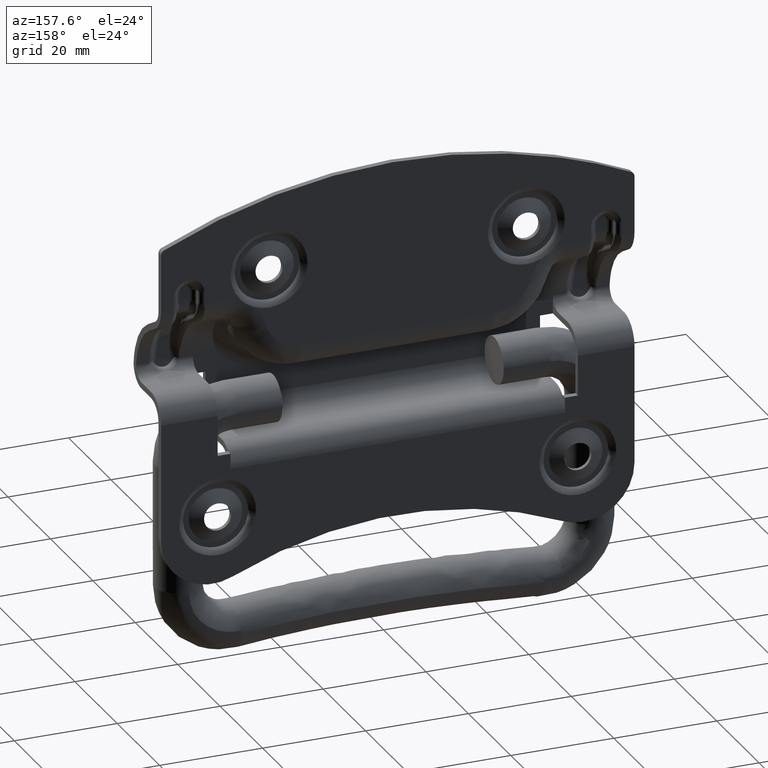
[diagram: clean part render]
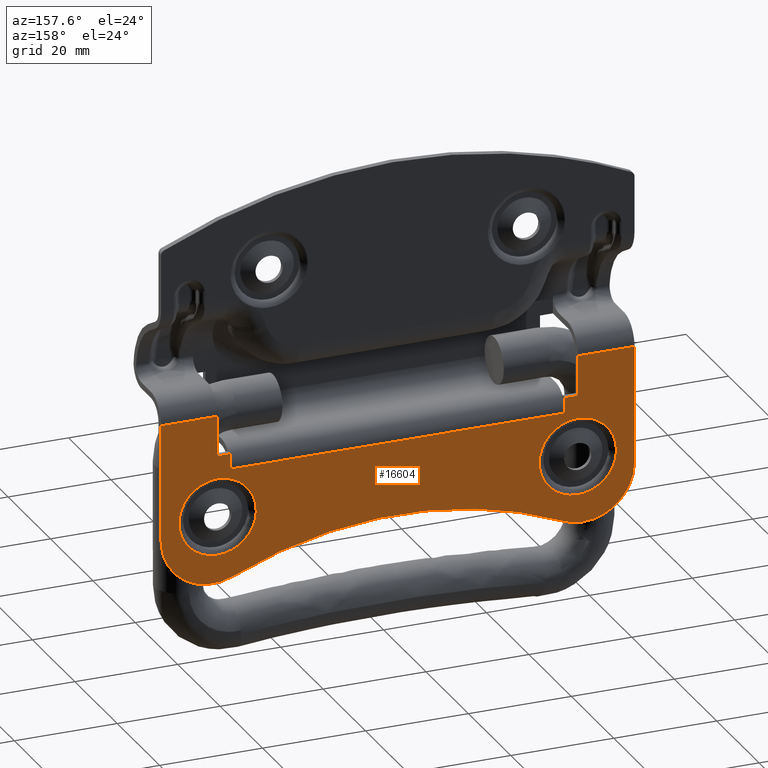
[diagram: same view with one face highlighted and labeled with its STEP entity id]
A machine part, auxiliary view. The second image highlights one B-rep face of the part: STEP entity #16604.
In plain terms, the highlighted face is a freeform B-spline surface patch.
Its self-contained STEP definition (entity closure, byte-faithful):
#3626=CARTESIAN_POINT('',(-27.599855425223289,6.699999999999719,-17.280221261060252));
#3627=VERTEX_POINT('',#3626);
#3638=CARTESIAN_POINT('',(-35.0,6.699999999999720,-26.0));
#3639=VERTEX_POINT('',#3638);
#3640=CARTESIAN_POINT('',(-35.0,6.699999999999720,-26.0));
#3641=CARTESIAN_POINT('',(-34.288704574271719,6.699999999999724,-26.000273183691100));
#3642=CARTESIAN_POINT('',(-33.035658044157557,6.699999999999723,-25.820332469836391));
#3643=CARTESIAN_POINT('',(-31.210047191143559,6.699999999999720,-25.063883149600262));
#3644=CARTESIAN_POINT('',(-29.841593448468380,6.699999999999722,-24.037435847041309));
#3645=CARTESIAN_POINT('',(-28.706756476137389,6.699999999999726,-22.681500628699869));
#3646=CARTESIAN_POINT('',(-27.908243690764831,6.699999999999671,-21.173775839776528));
#3647=CARTESIAN_POINT('',(-27.452651444790071,6.699999999999792,-19.281153220499061));
#3648=CARTESIAN_POINT('',(-27.489463035432362,6.699999999999602,-17.948586880482701));
#3649=CARTESIAN_POINT('',(-27.599855425223289,6.699999999999719,-17.280221261060252));
#3650=B_SPLINE_CURVE_WITH_KNOTS('',3,(#3640,#3641,#3642,#3643,#3644,#3645,#3646,#3647,#3648,#3649),.UNSPECIFIED.,.F.,.U.,(4,1,1,1,1,1,1,4),(0.000000212373902,2.133834701269379,3.759643754794759,5.893532867877579,7.214401029186730,9.043435308884464,10.974087894869710,13.006293049447180),.UNSPECIFIED.);
#3651=EDGE_CURVE('',#3639,#3627,#3650,.T.);
#3653=CARTESIAN_POINT('',(-42.318269938504258,6.699999999999719,-20.141013439086880));
#3654=VERTEX_POINT('',#3653);
#3655=CARTESIAN_POINT('',(-42.318269938504258,6.699999999999719,-20.141013439086880));
#3656=CARTESIAN_POINT('',(-42.214452002938728,6.699999999999712,-20.604200238841660));
#3657=CARTESIAN_POINT('',(-41.893832559409809,6.699999999999730,-21.586330490394239));
#3658=CARTESIAN_POINT('',(-41.193622429795077,6.699999999999724,-22.805861181178742));
#3659=CARTESIAN_POINT('',(-40.181610094252733,6.699999999999699,-23.993314852236558));
#3660=CARTESIAN_POINT('',(-39.051684029071502,6.699999999999716,-24.878599237936260));
#3661=CARTESIAN_POINT('',(-37.648024229773213,6.699999999999734,-25.562723038974330));
#3662=CARTESIAN_POINT('',(-36.344934902870172,6.699999999999678,-25.921945827620629));
#3663=CARTESIAN_POINT('',(-35.421938357701428,6.699999999999775,-26.000023701086899));
#3664=CARTESIAN_POINT('',(-35.0,6.699999999999720,-26.0));
#3665=B_SPLINE_CURVE_WITH_KNOTS('',3,(#3655,#3656,#3657,#3658,#3659,#3660,#3661,#3662,#3663,#3664),.UNSPECIFIED.,.F.,.U.,(4,1,1,1,1,1,1,4),(0.000000125036111,1.424044637612706,3.085460370484388,4.193082496738379,6.091764813244359,7.357619294588684,8.860800942332354,10.126621859375311),.UNSPECIFIED.);
#3666=EDGE_CURVE('',#3654,#3639,#3665,.T.);
#3726=CARTESIAN_POINT('',(-35.0,6.699999999999720,-11.0));
#3727=VERTEX_POINT('',#3726);
#3728=CARTESIAN_POINT('',(-35.0,6.699999999999720,-11.0));
#3729=CARTESIAN_POINT('',(-35.559798496327879,6.699999999999720,-10.999933483815809));
#3730=CARTESIAN_POINT('',(-36.784397192636888,6.699999999999731,-11.137604807253791));
#3731=CARTESIAN_POINT('',(-38.338848155812670,6.699999999999714,-11.717138733037951));
#3732=CARTESIAN_POINT('',(-39.636271434077223,6.699999999999687,-12.555941695968439));
#3733=CARTESIAN_POINT('',(-40.614277938842939,6.699999999999799,-13.464705605964051));
#3734=CARTESIAN_POINT('',(-41.327718833697119,6.699999999999690,-14.422747737639449));
#3735=CARTESIAN_POINT('',(-41.908370437549657,6.699999999999734,-15.503095869299290));
#3736=CARTESIAN_POINT('',(-42.353007188049801,6.699999999999696,-16.762875255903861));
#3737=CARTESIAN_POINT('',(-42.566314320276028,6.699999999999732,-18.403851695863519));
#3738=CARTESIAN_POINT('',(-42.448538906229501,6.699999999999728,-19.560652033271079));
#3739=CARTESIAN_POINT('',(-42.318269938504258,6.699999999999719,-20.141013439086880));
#3740=B_SPLINE_CURVE_WITH_KNOTS('',3,(#3728,#3729,#3730,#3731,#3732,#3733,#3734,#3735,#3736,#3737,#3738,#3739),.UNSPECIFIED.,.F.,.U.,(4,1,1,1,1,1,1,1,1,4),(0.000000210038293,1.679420830579582,3.673766477844316,4.933342316484399,6.297904577967850,7.662401031249160,8.502125861928827,9.971643600104251,11.651093681107509,13.435479629114520),.UNSPECIFIED.);
#3741=EDGE_CURVE('',#3727,#3654,#3740,.T.);
#3743=CARTESIAN_POINT('',(-27.599855425223289,6.699999999999719,-17.280221261060252));
#3744=CARTESIAN_POINT('',(-27.724680764961938,6.699999999999716,-16.520667887363221));
#3745=CARTESIAN_POINT('',(-28.107101265826198,6.699999999999730,-15.358135704087820));
#3746=CARTESIAN_POINT('',(-29.029527595575349,6.699999999999709,-13.884452753571789));
#3747=CARTESIAN_POINT('',(-30.161761420258738,6.699999999999740,-12.672715238692980));
#3748=CARTESIAN_POINT('',(-31.556914898403221,6.699999999999701,-11.764144170290830));
#3749=CARTESIAN_POINT('',(-33.240812544315759,6.699999999999744,-11.146071182416060));
#3750=CARTESIAN_POINT('',(-34.340250195567187,6.699999999999623,-10.999805559496419));
#3751=CARTESIAN_POINT('',(-35.0,6.699999999999720,-11.0));
#3752=B_SPLINE_CURVE_WITH_KNOTS('',3,(#3743,#3744,#3745,#3746,#3747,#3748,#3749,#3750,#3751),.UNSPECIFIED.,.F.,.U.,(4,1,1,1,1,1,4),(0.000000135050945,2.309076930338753,3.628565295656490,5.195484682989389,7.257103806770045,8.576603012520947,10.555804485255081),.UNSPECIFIED.);
#3753=EDGE_CURVE('',#3627,#3727,#3752,.T.);
#4032=CARTESIAN_POINT('',(42.400144574776732,6.699999999999719,-17.280221261060241));
#4033=VERTEX_POINT('',#4032);
#4044=CARTESIAN_POINT('',(35.0,6.699999999999720,-26.0));
#4045=VERTEX_POINT('',#4044);
#4046=CARTESIAN_POINT('',(35.0,6.699999999999720,-26.0));
#4047=CARTESIAN_POINT('',(35.846852069870828,6.699999999999713,-26.000597818656441));
#4048=CARTESIAN_POINT('',(37.099640313382487,6.699999999999726,-25.785427198100379));
#4049=CARTESIAN_POINT('',(38.620027694788988,6.699999999999735,-25.106270673083600));
#4050=CARTESIAN_POINT('',(39.755137943078601,6.699999999999633,-24.358494663900469));
#4051=CARTESIAN_POINT('',(40.682546388077817,6.699999999999869,-23.455194908533329));
#4052=CARTESIAN_POINT('',(41.533620281417598,6.699999999999733,-22.269151655127992));
#4053=CARTESIAN_POINT('',(42.084919001204597,6.699999999999610,-21.096709311646372));
#4054=CARTESIAN_POINT('',(42.530136174247389,6.699999999999816,-19.352417372369150));
#4055=CARTESIAN_POINT('',(42.538425438524911,6.699999999999640,-18.115713040427060));
#4056=CARTESIAN_POINT('',(42.400144574776732,6.699999999999719,-17.280221261060241));
#4057=B_SPLINE_CURVE_WITH_KNOTS('',3,(#4046,#4047,#4048,#4049,#4050,#4051,#4052,#4053,#4054,#4055,#4056),.UNSPECIFIED.,.F.,.U.,(4,1,1,1,1,1,1,1,4),(0.000000212392429,2.540289652377517,3.759643754806945,4.978979947245461,6.604706329162970,7.620866831913384,9.348268166197130,10.466004362948540,13.006293049447210),.UNSPECIFIED.);
#4058=EDGE_CURVE('',#4045,#4033,#4057,.T.);
#4060=CARTESIAN_POINT('',(27.681730061495738,6.699999999999719,-20.141013439086890));
#4061=VERTEX_POINT('',#4060);
#4062=CARTESIAN_POINT('',(27.681730061495738,6.699999999999719,-20.141013439086890));
#4063=CARTESIAN_POINT('',(27.848721393436399,6.699999999999717,-20.887378414220439));
#4064=CARTESIAN_POINT('',(28.277621844084539,6.699999999999739,-21.980109521483790));
#4065=CARTESIAN_POINT('',(29.181326525531549,6.699999999999694,-23.285023090704030));
#4066=CARTESIAN_POINT('',(29.954387265319038,6.699999999999757,-24.083698548517340));
#4067=CARTESIAN_POINT('',(30.893977259481009,6.699999999999682,-24.811841906459300));
#4068=CARTESIAN_POINT('',(32.005929148994340,6.699999999999785,-25.428560930222769));
#4069=CARTESIAN_POINT('',(33.444131458128020,6.699999999999696,-25.891056419869781));
#4070=CARTESIAN_POINT('',(34.472572330863997,6.699999999999753,-26.000086240621879));
#4071=CARTESIAN_POINT('',(35.0,6.699999999999720,-26.0));
#4072=B_SPLINE_CURVE_WITH_KNOTS('',3,(#4062,#4063,#4064,#4065,#4066,#4067,#4068,#4069,#4070,#4071),.UNSPECIFIED.,.F.,.U.,(4,1,1,1,1,1,1,4),(0.000000125035818,2.294308881482171,3.481044784825244,4.746893095980744,5.617108658994103,7.041162568403804,8.544355016929019,10.126621859375311),.UNSPECIFIED.);
#4073=EDGE_CURVE('',#4061,#4045,#4072,.T.);
#4134=CARTESIAN_POINT('',(35.0,6.699999999999720,-11.0));
#4135=VERTEX_POINT('',#4134);
#4136=CARTESIAN_POINT('',(35.0,6.699999999999720,-11.0));
#4137=CARTESIAN_POINT('',(34.300209145232252,6.699999999999716,-10.999733868809891));
#4138=CARTESIAN_POINT('',(33.215750915968250,6.699999999999722,-11.152954007343631));
#4139=CARTESIAN_POINT('',(31.736104193704261,6.699999999999718,-11.704676726227230));
#4140=CARTESIAN_POINT('',(30.584642420916179,6.699999999999727,-12.382103985473981));
#4141=CARTESIAN_POINT('',(29.634448241975331,6.699999999999714,-13.216829778122611));
#4142=CARTESIAN_POINT('',(28.825183765088308,6.699999999999758,-14.185275517355420));
#4143=CARTESIAN_POINT('',(28.125869177557149,6.699999999999731,-15.364596348106520));
#4144=CARTESIAN_POINT('',(27.630911569165651,6.699999999999683,-16.832575890887640));
#4145=CARTESIAN_POINT('',(27.440846476991130,6.699999999999797,-18.473953325595328));
#4146=CARTESIAN_POINT('',(27.551463914108009,6.699999999999657,-19.560656709564721));
#4147=CARTESIAN_POINT('',(27.681730061495738,6.699999999999719,-20.141013439086890));
#4148=B_SPLINE_CURVE_WITH_KNOTS('',3,(#4136,#4137,#4138,#4139,#4140,#4141,#4142,#4143,#4144,#4145,#4146,#4147),.UNSPECIFIED.,.F.,.U.,(4,1,1,1,1,1,1,1,1,4),(0.000000210007864,2.099283085204617,3.253905620094091,4.723441736556435,6.088005000745816,7.032578689106940,8.502125861918845,10.181575942929920,11.651093681103671,13.435479629114621),.UNSPECIFIED.);
#4149=EDGE_CURVE('',#4135,#4061,#4148,.T.);
#4151=CARTESIAN_POINT('',(42.400144574776732,6.699999999999719,-17.280221261060241));
#4152=CARTESIAN_POINT('',(42.293020048981532,6.699999999999720,-16.629231060847552));
#4153=CARTESIAN_POINT('',(41.889302753434130,6.699999999999719,-15.302831254166430));
#4154=CARTESIAN_POINT('',(40.855113042919157,6.699999999999736,-13.689732065661220));
#4155=CARTESIAN_POINT('',(39.745855064352490,6.699999999999713,-12.650213308682620));
#4156=CARTESIAN_POINT('',(38.673420032740260,6.699999999999739,-11.926272097797471));
#4157=CARTESIAN_POINT('',(37.198774034677882,6.699999999999683,-11.232165032149830));
#4158=CARTESIAN_POINT('',(35.852251702020062,6.699999999999756,-10.999373868002390));
#4159=CARTESIAN_POINT('',(35.0,6.699999999999720,-11.0));
#4160=B_SPLINE_CURVE_WITH_KNOTS('',3,(#4151,#4152,#4153,#4154,#4155,#4156,#4157,#4158,#4159),.UNSPECIFIED.,.F.,.U.,(4,1,1,1,1,1,4),(0.000000135060954,1.979214280191380,4.123393089286266,5.690235188502234,6.514908077512512,7.999322230464257,10.555804485255090),.UNSPECIFIED.);
#4161=EDGE_CURVE('',#4033,#4135,#4160,.T.);
#5456=CARTESIAN_POINT('',(-46.000500000000002,6.700000000000000,-21.500255710489149));
#5457=VERTEX_POINT('',#5456);
#5463=CARTESIAN_POINT('',(-32.000444444444447,6.700000000000000,-30.665382853768151));
#5464=VERTEX_POINT('',#5463);
#5465=CARTESIAN_POINT('',(-46.000500000000002,6.700000000000000,-21.500255710489149));
#5466=CARTESIAN_POINT('',(-46.000699082443383,6.700000000000009,-22.326223741991441));
#5467=CARTESIAN_POINT('',(-45.813960144823163,6.699999999999974,-23.823201004922879));
#5468=CARTESIAN_POINT('',(-45.034467095497689,6.700000000000027,-25.968959344305048));
#5469=CARTESIAN_POINT('',(-43.809704883099641,6.699999999999995,-27.900125607014729));
#5470=CARTESIAN_POINT('',(-42.196719274704670,6.700000000000008,-29.449931846392801));
#5471=CARTESIAN_POINT('',(-40.515667995647611,6.700000000000002,-30.477295092017631));
#5472=CARTESIAN_POINT('',(-38.639142737717812,6.700000000000006,-31.223377484754540));
#5473=CARTESIAN_POINT('',(-36.791421110349873,6.699999999999997,-31.539063745497572));
#5474=CARTESIAN_POINT('',(-34.412113020029132,6.700000000000010,-31.462618128273920));
#5475=CARTESIAN_POINT('',(-32.946549644554352,6.699999999999996,-31.078917052722510));
#5476=CARTESIAN_POINT('',(-32.000444444444447,6.700000000000000,-30.665382853768151));
#5477=B_SPLINE_CURVE_WITH_KNOTS('',3,(#5465,#5466,#5467,#5468,#5469,#5470,#5471,#5472,#5473,#5474,#5475,#5476),.UNSPECIFIED.,.F.,.U.,(4,1,1,1,1,1,1,1,1,4),(0.000000037315907,2.477897111639948,4.491229526797056,6.814320790391898,9.292223452452822,11.150622587147421,12.699324482743179,15.332160783704881,16.726010618363869,19.823390429529901),.UNSPECIFIED.);
#5478=EDGE_CURVE('',#5457,#5464,#5477,.T.);
#5535=CARTESIAN_POINT('',(32.0,6.700000000000000,-30.665188880706548));
#5536=VERTEX_POINT('',#5535);
#5537=CARTESIAN_POINT('',(32.0,6.700000000000000,-30.665188880706548));
#5538=CARTESIAN_POINT('',(28.149877668394339,6.699999999999949,-28.984546554938930));
#5539=CARTESIAN_POINT('',(22.053584642543690,6.700000000000085,-26.878155580883710));
#5540=CARTESIAN_POINT('',(13.497400507392040,6.699999999999909,-25.035017825972592));
#5541=CARTESIAN_POINT('',(5.325600566951113,6.700000000000061,-23.991518133333742));
#5542=CARTESIAN_POINT('',(-4.470337615616117,6.699999999999948,-23.849662568465231));
#5543=CARTESIAN_POINT('',(-14.362014368706150,6.700000000000017,-25.096664678876159));
#5544=CARTESIAN_POINT('',(-23.609465530746832,6.700000000000016,-27.386593744558319));
#5545=CARTESIAN_POINT('',(-29.014602901242270,6.699999999999952,-29.362136166338470));
#5546=CARTESIAN_POINT('',(-32.000444444444447,6.700000000000000,-30.665382853768151));
#5547=B_SPLINE_CURVE_WITH_KNOTS('',3,(#5537,#5538,#5539,#5540,#5541,#5542,#5543,#5544,#5545,#5546),.UNSPECIFIED.,.F.,.U.,(4,1,1,1,1,1,1,4),(0.000000014812841,12.602797947623131,19.290008543606600,26.234424015601999,37.293979632363829,48.610805399298833,56.069613308621612,65.843208657040549),.UNSPECIFIED.);
#5548=EDGE_CURVE('',#5536,#5464,#5547,.T.);
#5573=CARTESIAN_POINT('',(46.0,6.700000000000000,-21.500037490794899));
#5574=VERTEX_POINT('',#5573);
#5575=CARTESIAN_POINT('',(32.0,6.700000000000000,-30.665188880706548));
#5576=CARTESIAN_POINT('',(32.993388785730623,6.700000000000000,-31.099435587702210));
#5577=CARTESIAN_POINT('',(34.767943037139283,6.699999999999998,-31.549391572529881));
#5578=CARTESIAN_POINT('',(37.052174005048947,6.700000000000001,-31.498636786339819));
#5579=CARTESIAN_POINT('',(38.928654501381367,6.700000000000001,-31.117870249352130));
#5580=CARTESIAN_POINT('',(40.424535736424957,6.700000000000000,-30.523351818632481));
#5581=CARTESIAN_POINT('',(41.836636647848763,6.700000000000001,-29.660036462746380));
#5582=CARTESIAN_POINT('',(43.076593254612497,6.700000000000001,-28.640804303210821));
#5583=CARTESIAN_POINT('',(44.421186503202321,6.700000000000007,-27.059812476044680));
#5584=CARTESIAN_POINT('',(45.416206674820188,6.700000000000003,-25.112274607651919));
#5585=CARTESIAN_POINT('',(45.911879755109162,6.699999999999997,-23.151935463111279));
#5586=CARTESIAN_POINT('',(46.000020687255393,6.700000000000004,-22.016250497096060));
#5587=CARTESIAN_POINT('',(46.0,6.700000000000000,-21.500037490794899));
#5588=B_SPLINE_CURVE_WITH_KNOTS('',3,(#5575,#5576,#5577,#5578,#5579,#5580,#5581,#5582,#5583,#5584,#5585,#5586,#5587),.UNSPECIFIED.,.F.,.U.,(4,1,1,1,1,1,1,1,1,1,4),(0.000000037313963,3.252260517609972,5.420446492675625,6.814299952634197,8.982463758506379,10.221398112937729,11.770056297229740,13.783405473842430,16.416208451072311,18.274673899931880,19.823329811552089),.UNSPECIFIED.);
#5589=EDGE_CURVE('',#5536,#5574,#5588,.T.);
#11745=CARTESIAN_POINT('',(-35.000500000000002,6.700000000000000,1.300000000000000));
#11746=VERTEX_POINT('',#11745);
#11759=CARTESIAN_POINT('',(-46.000500000000002,6.700000000000000,1.300000000000000));
#11760=VERTEX_POINT('',#11759);
#11761=CARTESIAN_POINT('',(-46.000500000000002,6.700000000000000,1.300000000000000));
#11762=CARTESIAN_POINT('',(-35.000500000000002,6.700000000000000,1.300000000000000));
#11763=QUASI_UNIFORM_CURVE('',1,(#11761,#11762),.UNSPECIFIED.,.F.,.U.);
#11764=EDGE_CURVE('',#11760,#11746,#11763,.T.);
#11833=CARTESIAN_POINT('',(46.0,6.700000000000000,1.300000000000000));
#11834=VERTEX_POINT('',#11833);
#11847=CARTESIAN_POINT('',(35.0,6.700000000000000,1.300000000000000));
#11848=VERTEX_POINT('',#11847);
#11849=CARTESIAN_POINT('',(35.0,6.700000000000000,1.300000000000000));
#11850=CARTESIAN_POINT('',(46.0,6.700000000000000,1.300000000000000));
#11851=QUASI_UNIFORM_CURVE('',1,(#11849,#11850),.UNSPECIFIED.,.F.,.U.);
#11852=EDGE_CURVE('',#11848,#11834,#11851,.T.);
#15493=CARTESIAN_POINT('',(32.500000000000000,6.699999999999799,-9.500000000000000));
#15494=VERTEX_POINT('',#15493);
#15504=CARTESIAN_POINT('',(-32.500500000000002,6.699999999999799,-9.500000000000000));
#15505=VERTEX_POINT('',#15504);
#15506=CARTESIAN_POINT('',(32.500000000000000,6.699999999999799,-9.500000000000000));
#15507=CARTESIAN_POINT('',(-32.500500000000002,6.699999999999799,-9.500000000000000));
#15508=QUASI_UNIFORM_CURVE('',1,(#15506,#15507),.UNSPECIFIED.,.F.,.U.);
#15509=EDGE_CURVE('',#15494,#15505,#15508,.T.);
#15718=CARTESIAN_POINT('',(32.500000000000000,6.699999999999799,-6.500000000000090));
#15719=VERTEX_POINT('',#15718);
#15725=CARTESIAN_POINT('',(32.500000000000000,6.699999999999799,-9.500000000000000));
#15726=CARTESIAN_POINT('',(32.500000000000000,6.699999999999799,-6.500000000000090));
#15727=QUASI_UNIFORM_CURVE('',1,(#15725,#15726),.UNSPECIFIED.,.F.,.U.);
#15728=EDGE_CURVE('',#15494,#15719,#15727,.T.);
#15740=CARTESIAN_POINT('',(-32.500500000000002,6.699999999999799,-6.500000000000090));
#15741=VERTEX_POINT('',#15740);
#15742=CARTESIAN_POINT('',(-32.500500000000002,6.699999999999799,-9.500000000000000));
#15743=CARTESIAN_POINT('',(-32.500500000000002,6.699999999999799,-6.500000000000090));
#15744=QUASI_UNIFORM_CURVE('',1,(#15742,#15743),.UNSPECIFIED.,.F.,.U.);
#15745=EDGE_CURVE('',#15505,#15741,#15744,.T.);
#15769=CARTESIAN_POINT('',(35.0,6.700000000000000,-6.500000000000090));
#15770=VERTEX_POINT('',#15769);
#15776=CARTESIAN_POINT('',(35.0,6.700000000000000,-6.500000000000090));
#15777=CARTESIAN_POINT('',(32.500000000000000,6.699999999999799,-6.500000000000090));
#15778=QUASI_UNIFORM_CURVE('',1,(#15776,#15777),.UNSPECIFIED.,.F.,.U.);
#15779=EDGE_CURVE('',#15770,#15719,#15778,.T.);
#15801=CARTESIAN_POINT('',(35.0,6.700000000000000,1.300000000000000));
#15802=CARTESIAN_POINT('',(35.0,6.700000000000000,-6.500000000000090));
#15803=QUASI_UNIFORM_CURVE('',1,(#15801,#15802),.UNSPECIFIED.,.F.,.U.);
#15804=EDGE_CURVE('',#11848,#15770,#15803,.T.);
#15829=CARTESIAN_POINT('',(-35.000500000000002,6.700000000000000,-6.500000000000090));
#15830=VERTEX_POINT('',#15829);
#15831=CARTESIAN_POINT('',(-35.000500000000002,6.700000000000000,-6.500000000000090));
#15832=CARTESIAN_POINT('',(-32.500500000000002,6.699999999999799,-6.500000000000090));
#15833=QUASI_UNIFORM_CURVE('',1,(#15831,#15832),.UNSPECIFIED.,.F.,.U.);
#15834=EDGE_CURVE('',#15830,#15741,#15833,.T.);
#15849=CARTESIAN_POINT('',(-35.000500000000002,6.700000000000000,1.300000000000000));
#15850=CARTESIAN_POINT('',(-35.000500000000002,6.700000000000000,-6.500000000000090));
#15851=QUASI_UNIFORM_CURVE('',1,(#15849,#15850),.UNSPECIFIED.,.F.,.U.);
#15852=EDGE_CURVE('',#11746,#15830,#15851,.T.);
#16510=CARTESIAN_POINT('',(46.0,6.700000000000000,-21.500037490794899));
#16511=CARTESIAN_POINT('',(46.0,6.700000000000000,1.300000000000000));
#16512=QUASI_UNIFORM_CURVE('',1,(#16510,#16511),.UNSPECIFIED.,.F.,.U.);
#16513=EDGE_CURVE('',#5574,#11834,#16512,.T.);
#16563=CARTESIAN_POINT('',(-46.000500000000002,6.700000000000000,-21.500255710489149));
#16564=CARTESIAN_POINT('',(-46.000500000000002,6.700000000000000,1.300000000000000));
#16565=QUASI_UNIFORM_CURVE('',1,(#16563,#16564),.UNSPECIFIED.,.F.,.U.);
#16566=EDGE_CURVE('',#5457,#11760,#16565,.T.);
#16571=CARTESIAN_POINT('',(-50.595924796685189,6.699999999999999,2.938322283723649));
#16572=CARTESIAN_POINT('',(-50.595924796685189,6.700000000000000,-33.137569355550973));
#16573=CARTESIAN_POINT('',(50.595427264330901,6.699999999999999,2.938322283723649));
#16574=CARTESIAN_POINT('',(50.595427264330887,6.700000000000000,-33.137569355550973));
#16575=B_SPLINE_SURFACE_WITH_KNOTS('',1,1,((#16571,#16573),(#16572,#16574)),.UNSPECIFIED.,.F.,.F.,.U.,(2,2),(2,2),(0.0,36.075891639274623),(0.0,101.191352061016100),.UNSPECIFIED.);
#16576=ORIENTED_EDGE('',*,*,#16513,.F.);
#16577=ORIENTED_EDGE('',*,*,#5589,.F.);
#16578=ORIENTED_EDGE('',*,*,#5548,.T.);
#16579=ORIENTED_EDGE('',*,*,#5478,.F.);
#16580=ORIENTED_EDGE('',*,*,#16566,.T.);
#16581=ORIENTED_EDGE('',*,*,#11764,.T.);
#16582=ORIENTED_EDGE('',*,*,#15852,.T.);
#16583=ORIENTED_EDGE('',*,*,#15834,.T.);
#16584=ORIENTED_EDGE('',*,*,#15745,.F.);
#16585=ORIENTED_EDGE('',*,*,#15509,.F.);
#16586=ORIENTED_EDGE('',*,*,#15728,.T.);
#16587=ORIENTED_EDGE('',*,*,#15779,.F.);
#16588=ORIENTED_EDGE('',*,*,#15804,.F.);
#16589=ORIENTED_EDGE('',*,*,#11852,.T.);
#16590=EDGE_LOOP('',(#16576,#16577,#16578,#16579,#16580,#16581,#16582,#16583,#16584,#16585,#16586,#16587,#16588,#16589));
#16591=FACE_OUTER_BOUND('',#16590,.T.);
#16592=ORIENTED_EDGE('',*,*,#4058,.T.);
#16593=ORIENTED_EDGE('',*,*,#4161,.T.);
#16594=ORIENTED_EDGE('',*,*,#4149,.T.);
#16595=ORIENTED_EDGE('',*,*,#4073,.T.);
#16596=EDGE_LOOP('',(#16592,#16593,#16594,#16595));
#16597=FACE_BOUND('',#16596,.T.);
#16598=ORIENTED_EDGE('',*,*,#3651,.T.);
#16599=ORIENTED_EDGE('',*,*,#3753,.T.);
#16600=ORIENTED_EDGE('',*,*,#3741,.T.);
#16601=ORIENTED_EDGE('',*,*,#3666,.T.);
#16602=EDGE_LOOP('',(#16598,#16599,#16600,#16601));
#16603=FACE_BOUND('',#16602,.T.);
#16604=ADVANCED_FACE('',(#16591,#16597,#16603),#16575,.F.);